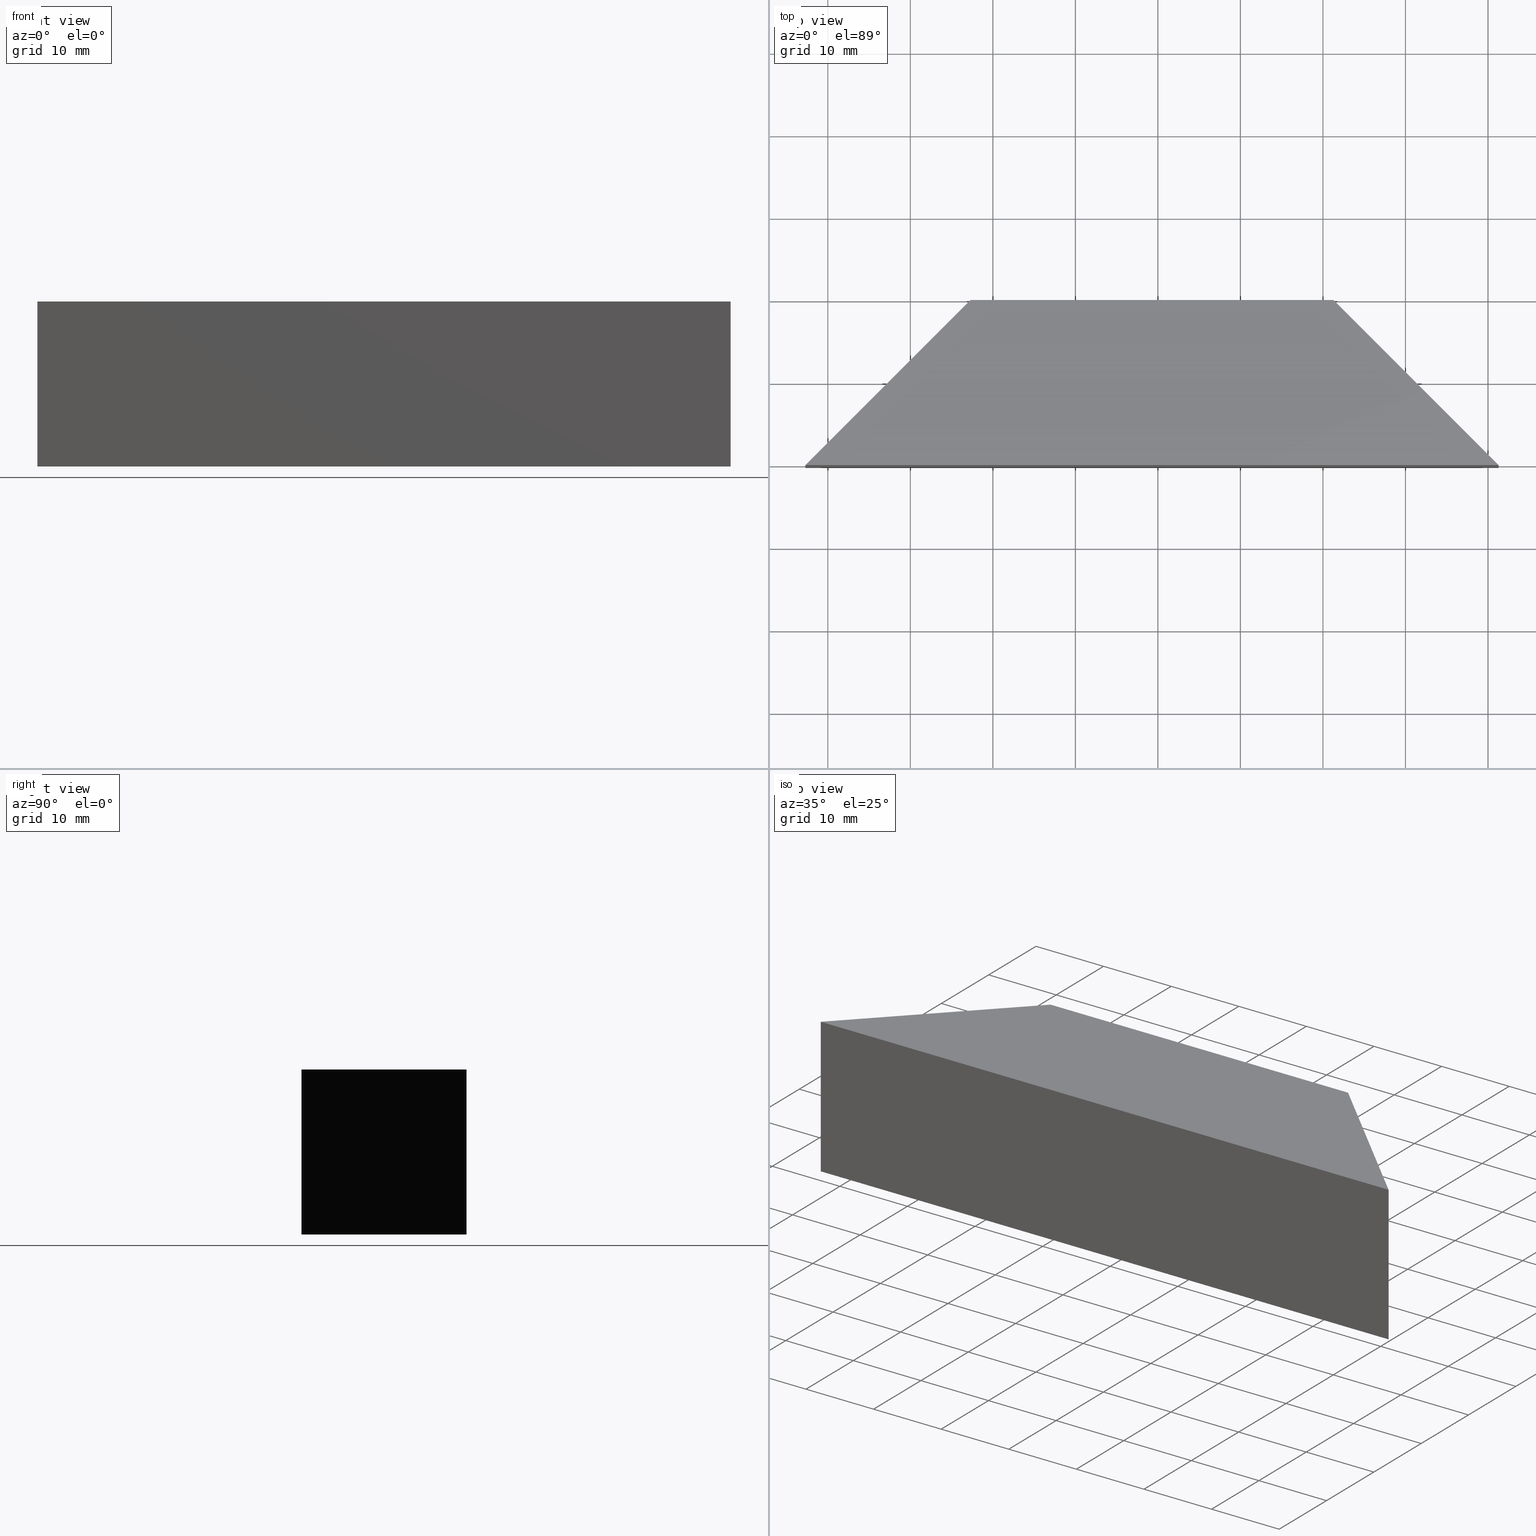
[diagram: canonical four-view strip — front | top / right | iso, engineering-drawing reading convention]
A machine part, canonical four-view strip (front | top / right | iso — engineering-drawing reading convention). The complete STEP part file that produces these views, byte-faithful:
ISO-10303-21;
HEADER;
FILE_DESCRIPTION (( 'STEP AP203' ),
    '1' );
FILE_NAME ('367503.STEP',
    '2023-08-02T05:54:23',
    ( 'Windows User' ),
    ( 'P R C' ),
    'SwSTEP 2.0',
    'SolidWorks 2020',
    '' );
FILE_SCHEMA (( 'CONFIG_CONTROL_DESIGN' ));
ENDSEC;

DATA;
#1 = EDGE_CURVE ( 'NONE', #22, #148, #169, .T. ) ;
#2 = AXIS2_PLACEMENT_3D ( 'NONE', #210, #122, #184 ) ;
#3 = CC_DESIGN_APPROVAL ( #55, ( #220 ) ) ;
#4 = CARTESIAN_POINT ( 'NONE',  ( 0.000000000000000000, 0.000000000000000000, 0.000000000000000000 ) ) ;
#5 = CARTESIAN_POINT ( 'NONE',  ( 0.000000000000000000, 0.000000000000000000, 0.000000000000000000 ) ) ;
#6 = ORIENTED_EDGE ( 'NONE', *, *, #28, .F. ) ;
#7 = CARTESIAN_POINT ( 'NONE',  ( 161.2870676035176416, 99.84420763766894424, 20.00000000000000000 ) ) ;
#8 = DIRECTION ( 'NONE',  ( 0.000000000000000000, -0.000000000000000000, 1.000000000000000000 ) ) ;
#9 = ORIENTED_EDGE ( 'NONE', *, *, #129, .F. ) ;
#10 = CARTESIAN_POINT ( 'NONE',  ( 77.28703400351744790, 99.84420763766895845, 20.00000000000000000 ) ) ;
#11 = CARTESIAN_POINT ( 'NONE',  ( 161.2870676035176416, 99.84420763766894424, 20.00000000000000000 ) ) ;
#12 = EDGE_CURVE ( 'NONE', #63, #23, #118, .T. ) ;
#13 = DATE_AND_TIME ( #47, #198 ) ;
#14 = DIRECTION ( 'NONE',  ( -1.000000000000000000, -0.000000000000000000, -0.000000000000000000 ) ) ;
#15 = PERSON_AND_ORGANIZATION_ROLE ( 'design_owner' ) ;
#16 = AXIS2_PLACEMENT_3D ( 'NONE', #121, #78, #96 ) ;
#17 = APPROVAL_STATUS ( 'not_yet_approved' ) ;
#18 = PRODUCT_RELATED_PRODUCT_CATEGORY ( 'detail', '', ( #215 ) ) ;
#19 = DIRECTION ( 'NONE',  ( 1.000000000000000000, -1.652116935321609837E-16, 0.000000000000000000 ) ) ;
#20 = ORGANIZATION ( 'δָ��', 'δָ��', '' ) ;
#21 = LINE ( 'NONE', #7, #137 ) ;
#22 = VERTEX_POINT ( 'NONE', #211 ) ;
#23 = VERTEX_POINT ( 'NONE', #136 ) ;
#24 = COORDINATED_UNIVERSAL_TIME_OFFSET ( 8, 0, .AHEAD. ) ;
#25 = PLANE ( 'NONE',  #31 ) ;
#26 = EDGE_LOOP ( 'NONE', ( #66, #228, #6, #124 ) ) ;
#27 = APPROVAL_DATE_TIME ( #49, #55 ) ;
#28 = EDGE_CURVE ( 'NONE', #23, #148, #188, .T. ) ;
#29 = APPROVAL_STATUS ( 'not_yet_approved' ) ;
#30 = PERSON_AND_ORGANIZATION_ROLE ( 'creator' ) ;
#31 = AXIS2_PLACEMENT_3D ( 'NONE', #225, #61, #208 ) ;
#32 = CC_DESIGN_PERSON_AND_ORGANIZATION_ASSIGNMENT ( #67, #70, ( #90 ) ) ;
#33 = AXIS2_PLACEMENT_3D ( 'NONE', #5, #201, #35 ) ;
#34 = FACE_OUTER_BOUND ( 'NONE', #222, .T. ) ;
#35 = DIRECTION ( 'NONE',  ( 1.000000000000000000, 0.000000000000000000, 0.000000000000000000 ) ) ;
#36 = PLANE ( 'NONE',  #2 ) ;
#37 = CARTESIAN_POINT ( 'NONE',  ( 97.28703400351744790, 119.8442076376689727, 20.00000000000000000 ) ) ;
#38 = AXIS2_PLACEMENT_3D ( 'NONE', #4, #8, #135 ) ;
#39 = ORIENTED_EDGE ( 'NONE', *, *, #71, .T. ) ;
#40 = DIRECTION ( 'NONE',  ( -0.000000000000000000, -0.000000000000000000, -1.000000000000000000 ) ) ;
#41 = DIRECTION ( 'NONE',  ( -0.7071067811865539010, 0.7071067811865411334, 0.000000000000000000 ) ) ;
#42 = CLOSED_SHELL ( 'NONE', ( #48, #72, #219, #186, #199, #160 ) ) ;
#43 = PLANE ( 'NONE',  #185 ) ;
#44 = ORIENTED_EDGE ( 'NONE', *, *, #12, .F. ) ;
#45 = DATE_AND_TIME ( #139, #179 ) ;
#46 = DIRECTION ( 'NONE',  ( -0.7071067811865539010, 0.7071067811865411334, 0.000000000000000000 ) ) ;
#47 = CALENDAR_DATE ( 2023, 2, 8 ) ;
#48 = ADVANCED_FACE ( 'NONE', ( #194 ), #36, .F. ) ;
#49 = DATE_AND_TIME ( #216, #92 ) ;
#50 = PERSON_AND_ORGANIZATION ( #203, #20 ) ;
#51 = CC_DESIGN_DATE_AND_TIME_ASSIGNMENT ( #45, #214, ( #220 ) ) ;
#52 = APPROVAL_PERSON_ORGANIZATION ( #89, #55, #123 ) ;
#53 = LOCAL_TIME ( 13, 54, 23.00000000000000000, #103 ) ;
#54 = ORIENTED_EDGE ( 'NONE', *, *, #224, .F. ) ;
#55 = APPROVAL ( #29, 'δָ��' ) ;
#56 = PLANE ( 'NONE',  #16 ) ;
#57 = ORIENTED_EDGE ( 'NONE', *, *, #71, .F. ) ;
#58 = CARTESIAN_POINT ( 'NONE',  ( 97.28703400351744790, 119.8442076376689727, 20.00000000000000000 ) ) ;
#59 = EDGE_LOOP ( 'NONE', ( #80, #44, #54, #205 ) ) ;
#60 = FACE_OUTER_BOUND ( 'NONE', #26, .T. ) ;
#61 = DIRECTION ( 'NONE',  ( 1.652116935321609837E-16, 1.000000000000000000, -0.000000000000000000 ) ) ;
#62 = DIRECTION ( 'NONE',  ( -1.000000000000000000, -0.000000000000000000, -0.000000000000000000 ) ) ;
#63 = VERTEX_POINT ( 'NONE', #190 ) ;
#64 = VECTOR ( 'NONE', #14, 1000.000000000000000 ) ;
#65 = CALENDAR_DATE ( 2023, 2, 8 ) ;
#66 = ORIENTED_EDGE ( 'NONE', *, *, #115, .F. ) ;
#67 = PERSON_AND_ORGANIZATION ( #203, #20 ) ;
#68 = CC_DESIGN_APPROVAL ( #217, ( #181 ) ) ;
#69 = COORDINATED_UNIVERSAL_TIME_OFFSET ( 8, 0, .AHEAD. ) ;
#70 = PERSON_AND_ORGANIZATION_ROLE ( 'creator' ) ;
#71 = EDGE_CURVE ( 'NONE', #63, #22, #21, .T. ) ;
#72 = ADVANCED_FACE ( 'NONE', ( #82 ), #25, .F. ) ;
#73 = ORIENTED_EDGE ( 'NONE', *, *, #115, .T. ) ;
#74 = AXIS2_PLACEMENT_3D ( 'NONE', #226, #151, #120 ) ;
#75 = VECTOR ( 'NONE', #87, 1000.000000000000000 ) ;
#76 = CC_DESIGN_SECURITY_CLASSIFICATION ( #220, ( #90 ) ) ;
#77 = CC_DESIGN_DATE_AND_TIME_ASSIGNMENT ( #13, #138, ( #181 ) ) ;
#78 = DIRECTION ( 'NONE',  ( -0.7071067811865411334, -0.7071067811865539010, 0.000000000000000000 ) ) ;
#79 = MECHANICAL_CONTEXT ( 'NONE', #112, 'mechanical' ) ;
#80 = ORIENTED_EDGE ( 'NONE', *, *, #104, .T. ) ;
#81 = CARTESIAN_POINT ( 'NONE',  ( 77.28703400351744790, 99.84420763766895845, 0.000000000000000000 ) ) ;
#82 = FACE_OUTER_BOUND ( 'NONE', #59, .T. ) ;
#83 = LINE ( 'NONE', #131, #116 ) ;
#84 = EDGE_LOOP ( 'NONE', ( #85, #154, #39, #180 ) ) ;
#85 = ORIENTED_EDGE ( 'NONE', *, *, #108, .T. ) ;
#86 = PERSON_AND_ORGANIZATION ( #203, #20 ) ;
#87 = DIRECTION ( 'NONE',  ( -0.000000000000000000, -0.000000000000000000, -1.000000000000000000 ) ) ;
#88 = CARTESIAN_POINT ( 'NONE',  ( 77.28703400351744790, 99.84420763766895845, 0.000000000000000000 ) ) ;
#89 = PERSON_AND_ORGANIZATION ( #203, #20 ) ;
#90 = PRODUCT_DEFINITION_FORMATION_WITH_SPECIFIED_SOURCE ( '�κ�', '', #215, .NOT_KNOWN. ) ;
#91 = PRODUCT_DEFINITION_SHAPE ( 'NONE', 'NONE',  #181 ) ;
#92 = LOCAL_TIME ( 13, 54, 23.00000000000000000, #105 ) ;
#93 = APPROVAL ( #237, 'δָ��' ) ;
#94 = EDGE_CURVE ( 'NONE', #22, #161, #102, .T. ) ;
#95 = APPROVAL_PERSON_ORGANIZATION ( #177, #93, #109 ) ;
#96 = DIRECTION ( 'NONE',  ( 0.7071067811865539010, -0.7071067811865411334, 0.000000000000000000 ) ) ;
#97 = EDGE_LOOP ( 'NONE', ( #73, #168, #134, #145 ) ) ;
#98 = CC_DESIGN_PERSON_AND_ORGANIZATION_ASSIGNMENT ( #50, #229, ( #220 ) ) ;
#99 = CARTESIAN_POINT ( 'NONE',  ( 77.28703400351744790, 99.84420763766895845, 0.000000000000000000 ) ) ;
#100 = ORIENTED_EDGE ( 'NONE', *, *, #144, .T. ) ;
#101 = LINE ( 'NONE', #221, #206 ) ;
#102 = LINE ( 'NONE', #171, #64 ) ;
#103 = COORDINATED_UNIVERSAL_TIME_OFFSET ( 8, 0, .AHEAD. ) ;
#104 = EDGE_CURVE ( 'NONE', #152, #23, #232, .T. ) ;
#105 = COORDINATED_UNIVERSAL_TIME_OFFSET ( 8, 0, .AHEAD. ) ;
#106 = DIRECTION ( 'NONE',  ( 1.000000000000000000, -1.652116935321609837E-16, 0.000000000000000000 ) ) ;
#107 = PERSON_AND_ORGANIZATION ( #203, #20 ) ;
#108 = EDGE_CURVE ( 'NONE', #161, #165, #174, .T. ) ;
#109 = APPROVAL_ROLE ( '' ) ;
#110 = VECTOR ( 'NONE', #62, 1000.000000000000000 ) ;
#111 = VECTOR ( 'NONE', #46, 1000.000000000000000 ) ;
#112 = APPLICATION_CONTEXT ( 'configuration controlled 3d designs of mechanical parts and assemblies' ) ;
#113 = DIRECTION ( 'NONE',  ( -0.000000000000000000, -0.000000000000000000, -1.000000000000000000 ) ) ;
#114 = EDGE_LOOP ( 'NONE', ( #100, #9, #150, #202 ) ) ;
#115 = EDGE_CURVE ( 'NONE', #230, #152, #127, .T. ) ;
#116 = VECTOR ( 'NONE', #40, 1000.000000000000000 ) ;
#117 =( LENGTH_UNIT ( ) NAMED_UNIT ( * ) SI_UNIT ( .MILLI., .METRE. ) );
#118 = LINE ( 'NONE', #11, #75 ) ;
#119 = APPLICATION_CONTEXT ( 'configuration controlled 3d designs of mechanical parts and assemblies' ) ;
#120 = DIRECTION ( 'NONE',  ( 1.000000000000000000, 0.000000000000000000, -0.000000000000000000 ) ) ;
#121 = CARTESIAN_POINT ( 'NONE',  ( 161.2870676035176416, 99.84420763766894424, 20.00000000000000000 ) ) ;
#122 = DIRECTION ( 'NONE',  ( 0.7071067811865475727, -0.7071067811865475727, 0.000000000000000000 ) ) ;
#123 = APPROVAL_ROLE ( '' ) ;
#124 = ORIENTED_EDGE ( 'NONE', *, *, #104, .F. ) ;
#125 = APPLICATION_PROTOCOL_DEFINITION ( 'international standard', 'config_control_design', 1994, #119 ) ;
#126 = CC_DESIGN_APPROVAL ( #93, ( #90 ) ) ;
#127 = LINE ( 'NONE', #81, #175 ) ;
#128 = LINE ( 'NONE', #189, #212 ) ;
#129 = EDGE_CURVE ( 'NONE', #161, #230, #101, .T. ) ;
#130 = ORIENTED_EDGE ( 'NONE', *, *, #1, .F. ) ;
#131 = CARTESIAN_POINT ( 'NONE',  ( 77.28703400351744790, 99.84420763766895845, 20.00000000000000000 ) ) ;
#132 = CARTESIAN_POINT ( 'NONE',  ( 141.2870676035172437, 119.8442076376689727, 20.00000000000000000 ) ) ;
#133 = DIRECTION ( 'NONE',  ( -0.7071067811865474617, -0.7071067811865474617, -0.000000000000000000 ) ) ;
#134 = ORIENTED_EDGE ( 'NONE', *, *, #108, .F. ) ;
#135 = DIRECTION ( 'NONE',  ( 1.000000000000000000, 0.000000000000000000, -0.000000000000000000 ) ) ;
#136 = CARTESIAN_POINT ( 'NONE',  ( 161.2870676035176416, 99.84420763766894424, 0.000000000000000000 ) ) ;
#137 = VECTOR ( 'NONE', #41, 1000.000000000000000 ) ;
#138 = DATE_TIME_ROLE ( 'creation_date' ) ;
#139 = CALENDAR_DATE ( 2023, 2, 8 ) ;
#140 = CC_DESIGN_PERSON_AND_ORGANIZATION_ASSIGNMENT ( #107, #30, ( #181 ) ) ;
#141 = DATE_AND_TIME ( #65, #53 ) ;
#142 = EDGE_CURVE ( 'NONE', #165, #152, #83, .T. ) ;
#143 = ADVANCED_BREP_SHAPE_REPRESENTATION ( '367503', ( #233, #33 ), #157 ) ;
#144 = EDGE_CURVE ( 'NONE', #148, #230, #164, .T. ) ;
#145 = ORIENTED_EDGE ( 'NONE', *, *, #129, .T. ) ;
#146 = ORIENTED_EDGE ( 'NONE', *, *, #28, .T. ) ;
#147 = CARTESIAN_POINT ( 'NONE',  ( 97.28703400351744790, 119.8442076376689727, 0.000000000000000000 ) ) ;
#148 = VERTEX_POINT ( 'NONE', #183 ) ;
#149 = DIRECTION ( 'NONE',  ( -0.7071067811865474617, -0.7071067811865474617, -0.000000000000000000 ) ) ;
#150 = ORIENTED_EDGE ( 'NONE', *, *, #94, .F. ) ;
#151 = DIRECTION ( 'NONE',  ( 0.000000000000000000, -0.000000000000000000, 1.000000000000000000 ) ) ;
#152 = VERTEX_POINT ( 'NONE', #99 ) ;
#153 = APPROVAL_ROLE ( '' ) ;
#154 = ORIENTED_EDGE ( 'NONE', *, *, #224, .T. ) ;
#155 = DESIGN_CONTEXT ( 'detailed design', #119, 'design' ) ;
#156 = CARTESIAN_POINT ( 'NONE',  ( 77.28703400351744790, 99.84420763766895845, 20.00000000000000000 ) ) ;
#157 =( GEOMETRIC_REPRESENTATION_CONTEXT ( 3 ) GLOBAL_UNCERTAINTY_ASSIGNED_CONTEXT ( ( #213 ) ) GLOBAL_UNIT_ASSIGNED_CONTEXT ( ( #117, #191, #170 ) ) REPRESENTATION_CONTEXT ( 'NONE', 'WORKASPACE' ) );
#158 = PERSON_AND_ORGANIZATION ( #203, #20 ) ;
#159 = COORDINATED_UNIVERSAL_TIME_OFFSET ( 8, 0, .AHEAD. ) ;
#160 = ADVANCED_FACE ( 'NONE', ( #60 ), #209, .F. ) ;
#161 = VERTEX_POINT ( 'NONE', #58 ) ;
#162 = ORIENTED_EDGE ( 'NONE', *, *, #12, .T. ) ;
#163 = VECTOR ( 'NONE', #133, 1000.000000000000114 ) ;
#164 = LINE ( 'NONE', #204, #110 ) ;
#165 = VERTEX_POINT ( 'NONE', #10 ) ;
#166 = APPROVAL_PERSON_ORGANIZATION ( #236, #217, #153 ) ;
#167 = FACE_OUTER_BOUND ( 'NONE', #84, .T. ) ;
#168 = ORIENTED_EDGE ( 'NONE', *, *, #142, .F. ) ;
#169 = LINE ( 'NONE', #132, #178 ) ;
#170 =( NAMED_UNIT ( * ) SI_UNIT ( $, .STERADIAN. ) SOLID_ANGLE_UNIT ( ) );
#171 = CARTESIAN_POINT ( 'NONE',  ( 97.28703400351744790, 119.8442076376689727, 20.00000000000000000 ) ) ;
#172 = APPROVAL_DATE_TIME ( #141, #217 ) ;
#173 = DIRECTION ( 'NONE',  ( -0.000000000000000000, -0.000000000000000000, -1.000000000000000000 ) ) ;
#174 = LINE ( 'NONE', #156, #163 ) ;
#175 = VECTOR ( 'NONE', #149, 1000.000000000000114 ) ;
#176 = APPROVAL_DATE_TIME ( #218, #93 ) ;
#177 = PERSON_AND_ORGANIZATION ( #203, #20 ) ;
#178 = VECTOR ( 'NONE', #173, 1000.000000000000000 ) ;
#179 = LOCAL_TIME ( 13, 54, 23.00000000000000000, #69 ) ;
#180 = ORIENTED_EDGE ( 'NONE', *, *, #94, .T. ) ;
#181 = PRODUCT_DEFINITION ( 'δ֪', '', #90, #155 ) ;
#182 = APPLICATION_PROTOCOL_DEFINITION ( 'international standard', 'config_control_design', 1994, #112 ) ;
#183 = CARTESIAN_POINT ( 'NONE',  ( 141.2870676035172437, 119.8442076376689727, 0.000000000000000000 ) ) ;
#184 = DIRECTION ( 'NONE',  ( 0.7071067811865474617, 0.7071067811865474617, 0.000000000000000000 ) ) ;
#185 = AXIS2_PLACEMENT_3D ( 'NONE', #37, #207, #223 ) ;
#186 = ADVANCED_FACE ( 'NONE', ( #227 ), #43, .F. ) ;
#187 = PLANE ( 'NONE',  #74 ) ;
#188 = LINE ( 'NONE', #192, #111 ) ;
#189 = CARTESIAN_POINT ( 'NONE',  ( 77.28703400351744790, 99.84420763766895845, 20.00000000000000000 ) ) ;
#190 = CARTESIAN_POINT ( 'NONE',  ( 161.2870676035176416, 99.84420763766894424, 20.00000000000000000 ) ) ;
#191 =( NAMED_UNIT ( * ) PLANE_ANGLE_UNIT ( ) SI_UNIT ( $, .RADIAN. ) );
#192 = CARTESIAN_POINT ( 'NONE',  ( 161.2870676035176416, 99.84420763766894424, 0.000000000000000000 ) ) ;
#193 = SHAPE_DEFINITION_REPRESENTATION ( #91, #143 ) ;
#194 = FACE_OUTER_BOUND ( 'NONE', #97, .T. ) ;
#195 = SECURITY_CLASSIFICATION_LEVEL ( 'unclassified' ) ;
#196 = CC_DESIGN_PERSON_AND_ORGANIZATION_ASSIGNMENT ( #86, #231, ( #90 ) ) ;
#197 = VECTOR ( 'NONE', #106, 1000.000000000000000 ) ;
#198 = LOCAL_TIME ( 13, 54, 23.00000000000000000, #159 ) ;
#199 = ADVANCED_FACE ( 'NONE', ( #167 ), #187, .T. ) ;
#200 = CC_DESIGN_PERSON_AND_ORGANIZATION_ASSIGNMENT ( #158, #15, ( #215 ) ) ;
#201 = DIRECTION ( 'NONE',  ( 0.000000000000000000, 0.000000000000000000, 1.000000000000000000 ) ) ;
#202 = ORIENTED_EDGE ( 'NONE', *, *, #1, .T. ) ;
#203 = PERSON ( 'δָ��', 'δָ��', 'δָ��', ('δָ��'), ('δָ��'), ('δָ��') ) ;
#204 = CARTESIAN_POINT ( 'NONE',  ( 97.28703400351744790, 119.8442076376689727, 0.000000000000000000 ) ) ;
#205 = ORIENTED_EDGE ( 'NONE', *, *, #142, .T. ) ;
#206 = VECTOR ( 'NONE', #113, 1000.000000000000000 ) ;
#207 = DIRECTION ( 'NONE',  ( 0.000000000000000000, -1.000000000000000000, 0.000000000000000000 ) ) ;
#208 = DIRECTION ( 'NONE',  ( -1.000000000000000000, 1.652116935321609837E-16, 0.000000000000000000 ) ) ;
#209 = PLANE ( 'NONE',  #38 ) ;
#210 = CARTESIAN_POINT ( 'NONE',  ( 77.28703400351744790, 99.84420763766895845, 20.00000000000000000 ) ) ;
#211 = CARTESIAN_POINT ( 'NONE',  ( 141.2870676035172437, 119.8442076376689727, 20.00000000000000000 ) ) ;
#212 = VECTOR ( 'NONE', #19, 1000.000000000000000 ) ;
#213 = UNCERTAINTY_MEASURE_WITH_UNIT (LENGTH_MEASURE( 1.000000000000000082E-05 ), #117, 'distance_accuracy_value', 'NONE');
#214 = DATE_TIME_ROLE ( 'classification_date' ) ;
#215 = PRODUCT ( '367503', '367503', '', ( #79 ) ) ;
#216 = CALENDAR_DATE ( 2023, 2, 8 ) ;
#217 = APPROVAL ( #17, 'δָ��' ) ;
#218 = DATE_AND_TIME ( #235, #234 ) ;
#219 = ADVANCED_FACE ( 'NONE', ( #34 ), #56, .F. ) ;
#220 = SECURITY_CLASSIFICATION ( '', '', #195 ) ;
#221 = CARTESIAN_POINT ( 'NONE',  ( 97.28703400351744790, 119.8442076376689727, 20.00000000000000000 ) ) ;
#222 = EDGE_LOOP ( 'NONE', ( #146, #130, #57, #162 ) ) ;
#223 = DIRECTION ( 'NONE',  ( 0.000000000000000000, -0.000000000000000000, -1.000000000000000000 ) ) ;
#224 = EDGE_CURVE ( 'NONE', #165, #63, #128, .T. ) ;
#225 = CARTESIAN_POINT ( 'NONE',  ( 77.28703400351744790, 99.84420763766895845, 20.00000000000000000 ) ) ;
#226 = CARTESIAN_POINT ( 'NONE',  ( 0.000000000000000000, 0.000000000000000000, 20.00000000000000000 ) ) ;
#227 = FACE_OUTER_BOUND ( 'NONE', #114, .T. ) ;
#228 = ORIENTED_EDGE ( 'NONE', *, *, #144, .F. ) ;
#229 = PERSON_AND_ORGANIZATION_ROLE ( 'classification_officer' ) ;
#230 = VERTEX_POINT ( 'NONE', #147 ) ;
#231 = PERSON_AND_ORGANIZATION_ROLE ( 'design_supplier' ) ;
#232 = LINE ( 'NONE', #88, #197 ) ;
#233 = MANIFOLD_SOLID_BREP ( '͹̨-����1', #42 ) ;
#234 = LOCAL_TIME ( 13, 54, 23.00000000000000000, #24 ) ;
#235 = CALENDAR_DATE ( 2023, 2, 8 ) ;
#236 = PERSON_AND_ORGANIZATION ( #203, #20 ) ;
#237 = APPROVAL_STATUS ( 'not_yet_approved' ) ;
ENDSEC;
END-ISO-10303-21;
